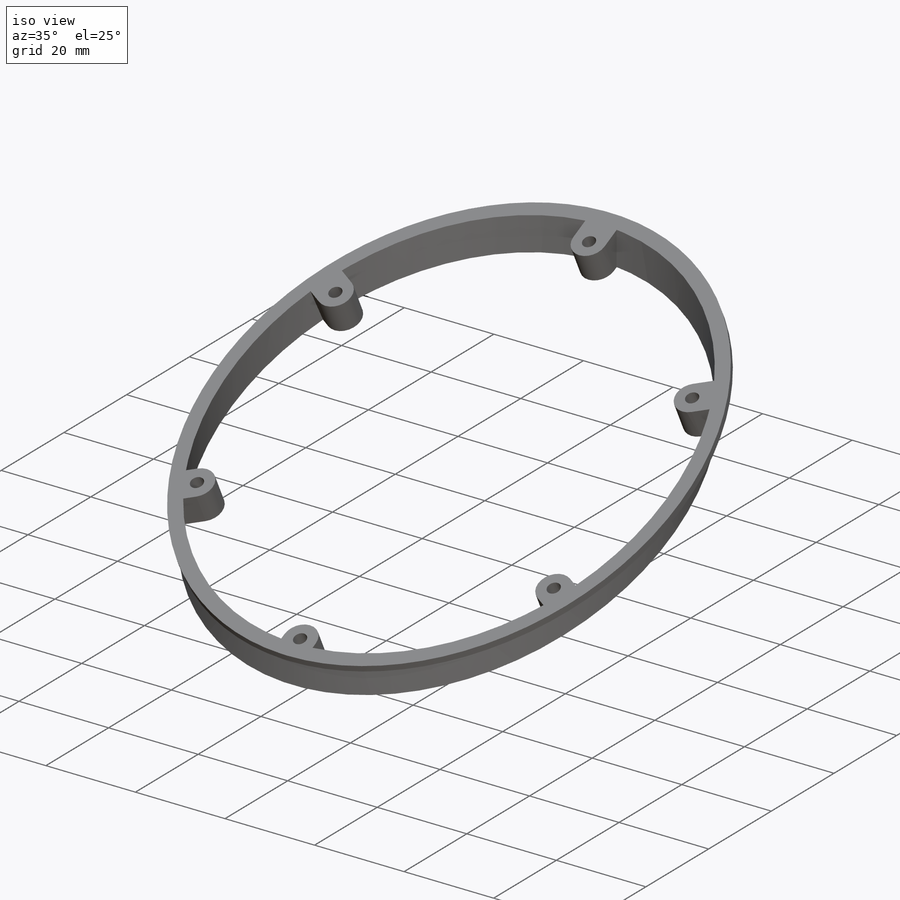
[diagram: iso view]
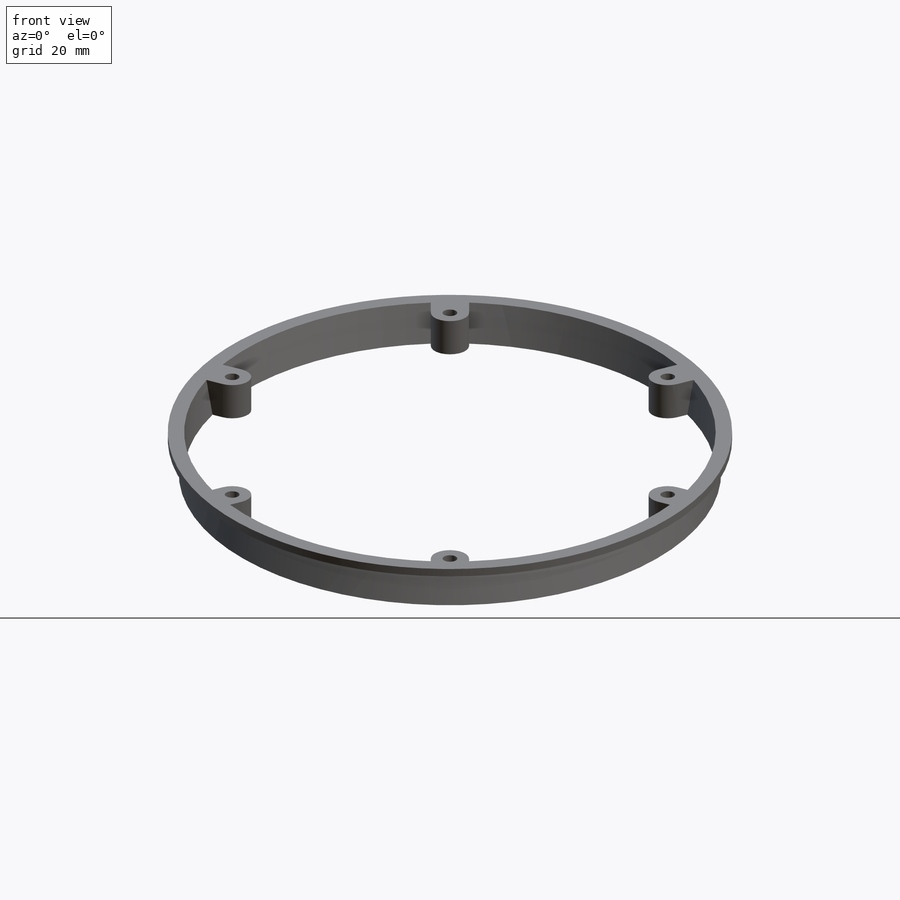
[diagram: front view]
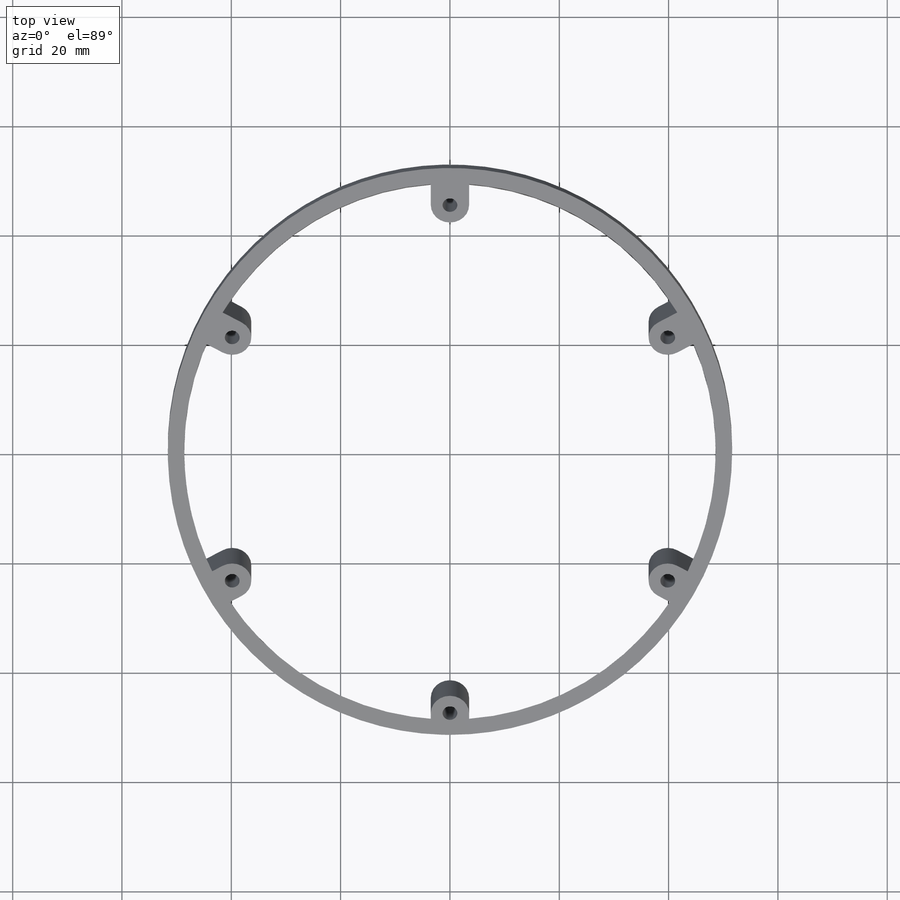
[diagram: top view]
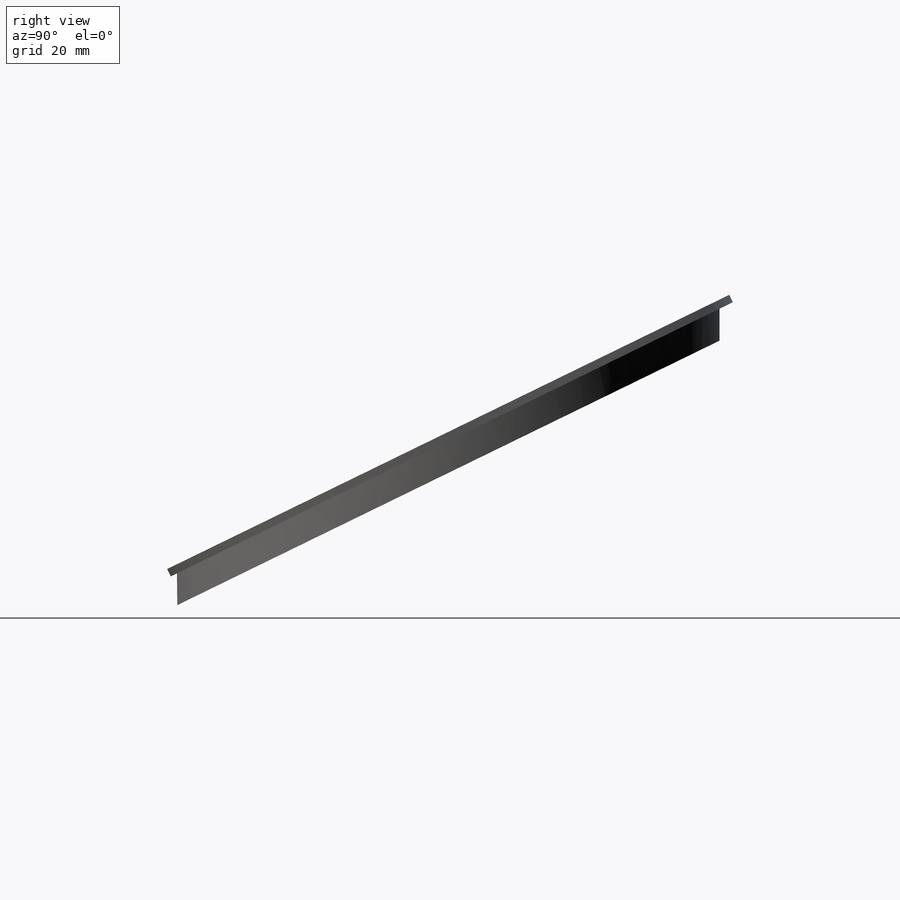
[diagram: right view]
SOLIDWORKS PART (.sldprt)
format: sldprt  version: not decoded by parser v0  size: 406,016 bytes
history: native  units: mm
features: sketch x7, plane x2, cut_extrude x2, material x1, extrude x1, hole x1 + 1 further entry (+11 scaffold rows collapsed)
feature tree (26):
  scaffold x11  (default folders/planes/origin — collapsed)
  material  "PET"
  plane  "Plane1"
  sketch  "Sketch1"  dims[c1.D1=99.25mm c2.D1=100.0mm c2.D19=50.0mm c2.D5=1.0mm c2.D6=1.0mm c2.D7=5.0mm]
  plane  "Plane2"  Offset=6.75mm
  sketch  "Sketch6"
  cut_extrude  "Cut-Extrude1"  [1 undecoded]
  sketch  "Sketch7"  dims[c1.D1=3.5mm c1.D5=3.5mm c1.D2=53.0mm c1.D4=46.0mm c1.D6=~53.482757mm c2.D6=60.0deg c2.D3=15.0mm c2.D7=15.0mm c3.D3=0.0mm]
  extrude  "Boss-Extrude7"  Depth=50mm
  cut_extrude  "Cut-Extrude2"  [1 undecoded]
  sketch  "Sketch1<2>"
  hole  "Tap Drill for #6-32 Tap3"  Diameter=2.7051mm Depth=50.258336mm
  sketch  "Sketch13"
  sketch  "Sketch14"  dims[hole-wizard template sketch: 60 standard entries collapsed; hole parameters kept: c18.Thru Hole Depth=~50.258336mm]
  "Axis4"
  sketch  "Sketch15"  dims[D1=1.5mm D5=2.0mm D6=0.1mm D7=5.0mm]
decode coverage: 6 of 11 modeling features carry decoded parameters; 1 rows unclassified (native names shown)
note: ~ marks probable driven/reference dimensions
note: 2 parameter values undecoded
note: suppression state not decoded; provenance and decode notes live in map.json
